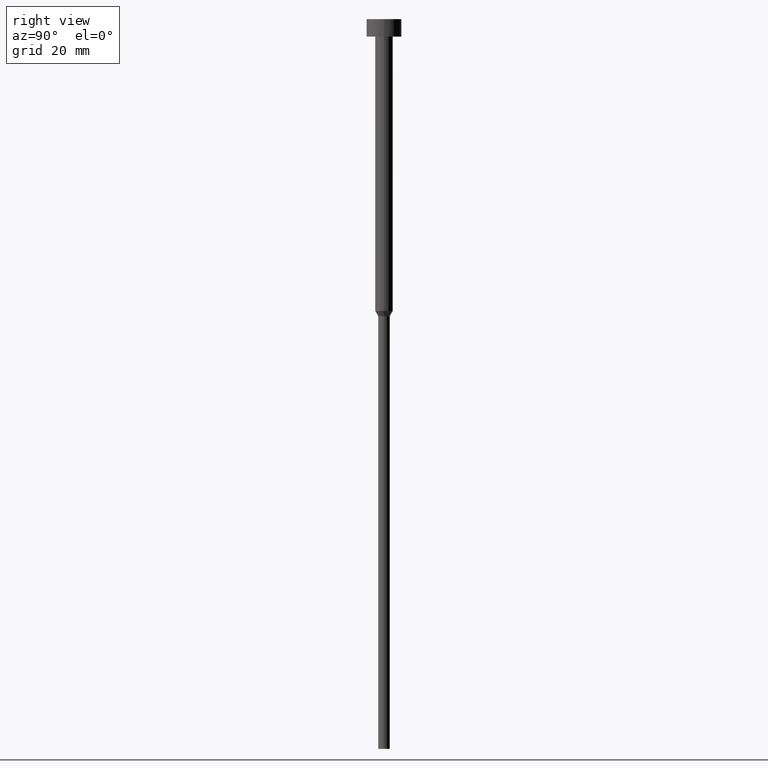
[diagram: clean part render]
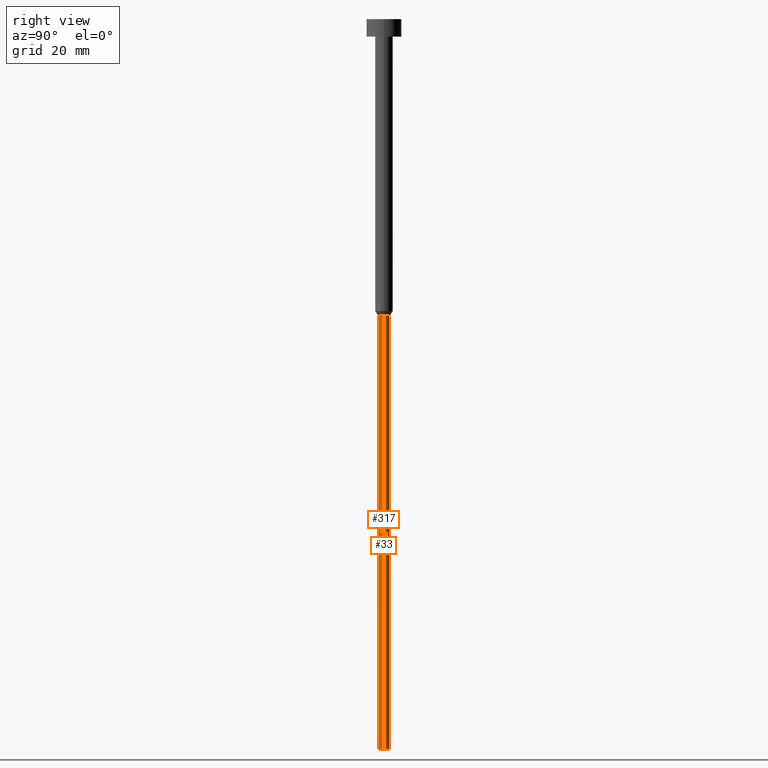
[diagram: same view with one multi-face feature highlighted, each face labeled with its STEP entity id]
A machine part, right view. The highlighted faces form ONE feature: a constant-radius fillet chain: 2 tangent blend faces with common blend radius 1 mm. The faces share edges in the B-rep.
Their STEP definitions:
[1] entity #33 (Cylinder):
#3 = CARTESIAN_POINT ( 'NONE',  ( 1.000000000000000000, 0.000000000000000000, 0.000000000000000000 ) ) ;
#6 = CARTESIAN_POINT ( 'NONE',  ( 1.000000000000000000, 0.000000000000000000, -125.0000000000000000 ) ) ;
#7 = ORIENTED_EDGE ( 'NONE', *, *, #325, .T. ) ;
#8 = DIRECTION ( 'NONE',  ( -0.000000000000000000, -0.000000000000000000, 1.000000000000000000 ) ) ;
#24 = VERTEX_POINT ( 'NONE', #50 ) ;
#33 = ADVANCED_FACE ( 'NONE', ( #105 ), #139, .T. ) ;
#50 = CARTESIAN_POINT ( 'NONE',  ( 1.000000000000000000, 0.000000000000000000, -50.86602540378444104 ) ) ;
#54 = ORIENTED_EDGE ( 'NONE', *, *, #291, .T. ) ;
#56 = LINE ( 'NONE', #149, #112 ) ;
#80 = VERTEX_POINT ( 'NONE', #6 ) ;
#101 = EDGE_CURVE ( 'NONE', #80, #24, #121, .T. ) ;
#103 = CIRCLE ( 'NONE', #258, 1.000000000000000000 ) ;
#105 = FACE_OUTER_BOUND ( 'NONE', #131, .T. ) ;
#112 = VECTOR ( 'NONE', #337, 1000.000000000000000 ) ;
#121 = LINE ( 'NONE', #3, #351 ) ;
#130 = CARTESIAN_POINT ( 'NONE',  ( -1.000000000000000000, 1.224646799147353207E-16, -50.86602540378444104 ) ) ;
#131 = EDGE_LOOP ( 'NONE', ( #54, #7, #156, #204 ) ) ;
#139 = CYLINDRICAL_SURFACE ( 'NONE', #169, 1.000000000000000000 ) ;
#143 = DIRECTION ( 'NONE',  ( 1.000000000000000000, 0.000000000000000000, 0.000000000000000000 ) ) ;
#149 = CARTESIAN_POINT ( 'NONE',  ( -1.000000000000000000, 1.224646799147353207E-16, 0.000000000000000000 ) ) ;
#156 = ORIENTED_EDGE ( 'NONE', *, *, #344, .F. ) ;
#169 = AXIS2_PLACEMENT_3D ( 'NONE', #244, #354, #328 ) ;
#170 = CIRCLE ( 'NONE', #235, 1.000000000000000000 ) ;
#179 = VERTEX_POINT ( 'NONE', #310 ) ;
#180 = DIRECTION ( 'NONE',  ( 1.000000000000000000, 0.000000000000000000, 0.000000000000000000 ) ) ;
#201 = DIRECTION ( 'NONE',  ( -0.000000000000000000, -0.000000000000000000, 1.000000000000000000 ) ) ;
#204 = ORIENTED_EDGE ( 'NONE', *, *, #101, .F. ) ;
#207 = CARTESIAN_POINT ( 'NONE',  ( 0.000000000000000000, 0.000000000000000000, -50.86602540378444104 ) ) ;
#235 = AXIS2_PLACEMENT_3D ( 'NONE', #207, #253, #143 ) ;
#244 = CARTESIAN_POINT ( 'NONE',  ( 0.000000000000000000, 0.000000000000000000, 0.000000000000000000 ) ) ;
#253 = DIRECTION ( 'NONE',  ( -0.000000000000000000, -0.000000000000000000, 1.000000000000000000 ) ) ;
#255 = CARTESIAN_POINT ( 'NONE',  ( 0.000000000000000000, 0.000000000000000000, -125.0000000000000000 ) ) ;
#258 = AXIS2_PLACEMENT_3D ( 'NONE', #255, #201, #180 ) ;
#263 = VERTEX_POINT ( 'NONE', #130 ) ;
#291 = EDGE_CURVE ( 'NONE', #80, #179, #103, .T. ) ;
#310 = CARTESIAN_POINT ( 'NONE',  ( -1.000000000000000000, 1.224646799147353207E-16, -125.0000000000000000 ) ) ;
#325 = EDGE_CURVE ( 'NONE', #179, #263, #56, .T. ) ;
#328 = DIRECTION ( 'NONE',  ( 1.000000000000000000, 0.000000000000000000, 0.000000000000000000 ) ) ;
#337 = DIRECTION ( 'NONE',  ( -0.000000000000000000, -0.000000000000000000, 1.000000000000000000 ) ) ;
#344 = EDGE_CURVE ( 'NONE', #24, #263, #170, .T. ) ;
#351 = VECTOR ( 'NONE', #8, 1000.000000000000000 ) ;
#354 = DIRECTION ( 'NONE',  ( -0.000000000000000000, -0.000000000000000000, 1.000000000000000000 ) ) ;
[2] entity #317 (Cylinder):
#1 = ORIENTED_EDGE ( 'NONE', *, *, #325, .F. ) ;
#3 = CARTESIAN_POINT ( 'NONE',  ( 1.000000000000000000, 0.000000000000000000, 0.000000000000000000 ) ) ;
#6 = CARTESIAN_POINT ( 'NONE',  ( 1.000000000000000000, 0.000000000000000000, -125.0000000000000000 ) ) ;
#8 = DIRECTION ( 'NONE',  ( -0.000000000000000000, -0.000000000000000000, 1.000000000000000000 ) ) ;
#24 = VERTEX_POINT ( 'NONE', #50 ) ;
#27 = DIRECTION ( 'NONE',  ( -0.000000000000000000, -0.000000000000000000, 1.000000000000000000 ) ) ;
#50 = CARTESIAN_POINT ( 'NONE',  ( 1.000000000000000000, 0.000000000000000000, -50.86602540378444104 ) ) ;
#56 = LINE ( 'NONE', #149, #112 ) ;
#66 = ORIENTED_EDGE ( 'NONE', *, *, #124, .F. ) ;
#67 = CIRCLE ( 'NONE', #268, 1.000000000000000000 ) ;
#77 = DIRECTION ( 'NONE',  ( 1.000000000000000000, 0.000000000000000000, 0.000000000000000000 ) ) ;
#80 = VERTEX_POINT ( 'NONE', #6 ) ;
#84 = DIRECTION ( 'NONE',  ( 1.000000000000000000, 0.000000000000000000, 0.000000000000000000 ) ) ;
#88 = ORIENTED_EDGE ( 'NONE', *, *, #211, .T. ) ;
#101 = EDGE_CURVE ( 'NONE', #80, #24, #121, .T. ) ;
#104 = DIRECTION ( 'NONE',  ( 1.000000000000000000, 0.000000000000000000, 0.000000000000000000 ) ) ;
#112 = VECTOR ( 'NONE', #337, 1000.000000000000000 ) ;
#121 = LINE ( 'NONE', #3, #351 ) ;
#124 = EDGE_CURVE ( 'NONE', #263, #24, #208, .T. ) ;
#130 = CARTESIAN_POINT ( 'NONE',  ( -1.000000000000000000, 1.224646799147353207E-16, -50.86602540378444104 ) ) ;
#144 = DIRECTION ( 'NONE',  ( -0.000000000000000000, -0.000000000000000000, 1.000000000000000000 ) ) ;
#148 = CARTESIAN_POINT ( 'NONE',  ( 0.000000000000000000, 0.000000000000000000, -50.86602540378444104 ) ) ;
#149 = CARTESIAN_POINT ( 'NONE',  ( -1.000000000000000000, 1.224646799147353207E-16, 0.000000000000000000 ) ) ;
#172 = CYLINDRICAL_SURFACE ( 'NONE', #219, 1.000000000000000000 ) ;
#179 = VERTEX_POINT ( 'NONE', #310 ) ;
#186 = AXIS2_PLACEMENT_3D ( 'NONE', #148, #144, #84 ) ;
#191 = EDGE_LOOP ( 'NONE', ( #1, #88, #303, #66 ) ) ;
#208 = CIRCLE ( 'NONE', #186, 1.000000000000000000 ) ;
#211 = EDGE_CURVE ( 'NONE', #179, #80, #67, .T. ) ;
#219 = AXIS2_PLACEMENT_3D ( 'NONE', #278, #27, #77 ) ;
#222 = CARTESIAN_POINT ( 'NONE',  ( 0.000000000000000000, 0.000000000000000000, -125.0000000000000000 ) ) ;
#263 = VERTEX_POINT ( 'NONE', #130 ) ;
#268 = AXIS2_PLACEMENT_3D ( 'NONE', #222, #350, #104 ) ;
#274 = FACE_OUTER_BOUND ( 'NONE', #191, .T. ) ;
#278 = CARTESIAN_POINT ( 'NONE',  ( 0.000000000000000000, 0.000000000000000000, 0.000000000000000000 ) ) ;
#303 = ORIENTED_EDGE ( 'NONE', *, *, #101, .T. ) ;
#310 = CARTESIAN_POINT ( 'NONE',  ( -1.000000000000000000, 1.224646799147353207E-16, -125.0000000000000000 ) ) ;
#317 = ADVANCED_FACE ( 'NONE', ( #274 ), #172, .T. ) ;
#325 = EDGE_CURVE ( 'NONE', #179, #263, #56, .T. ) ;
#337 = DIRECTION ( 'NONE',  ( -0.000000000000000000, -0.000000000000000000, 1.000000000000000000 ) ) ;
#350 = DIRECTION ( 'NONE',  ( -0.000000000000000000, -0.000000000000000000, 1.000000000000000000 ) ) ;
#351 = VECTOR ( 'NONE', #8, 1000.000000000000000 ) ;